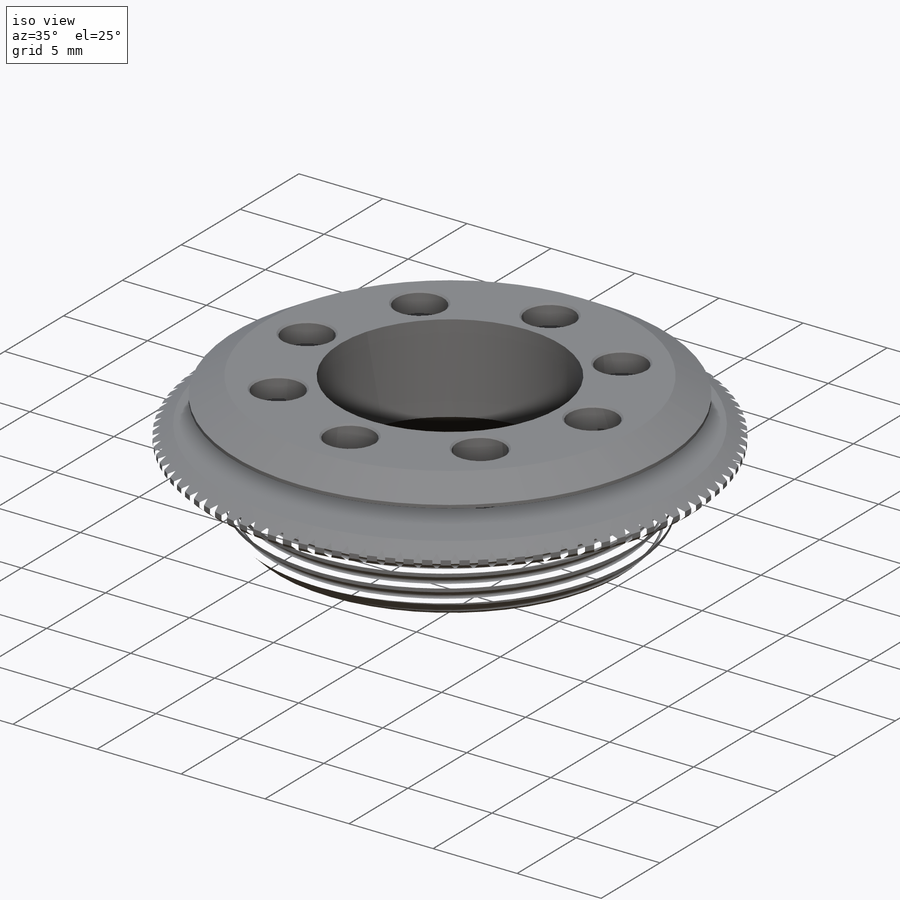
[diagram: iso view]
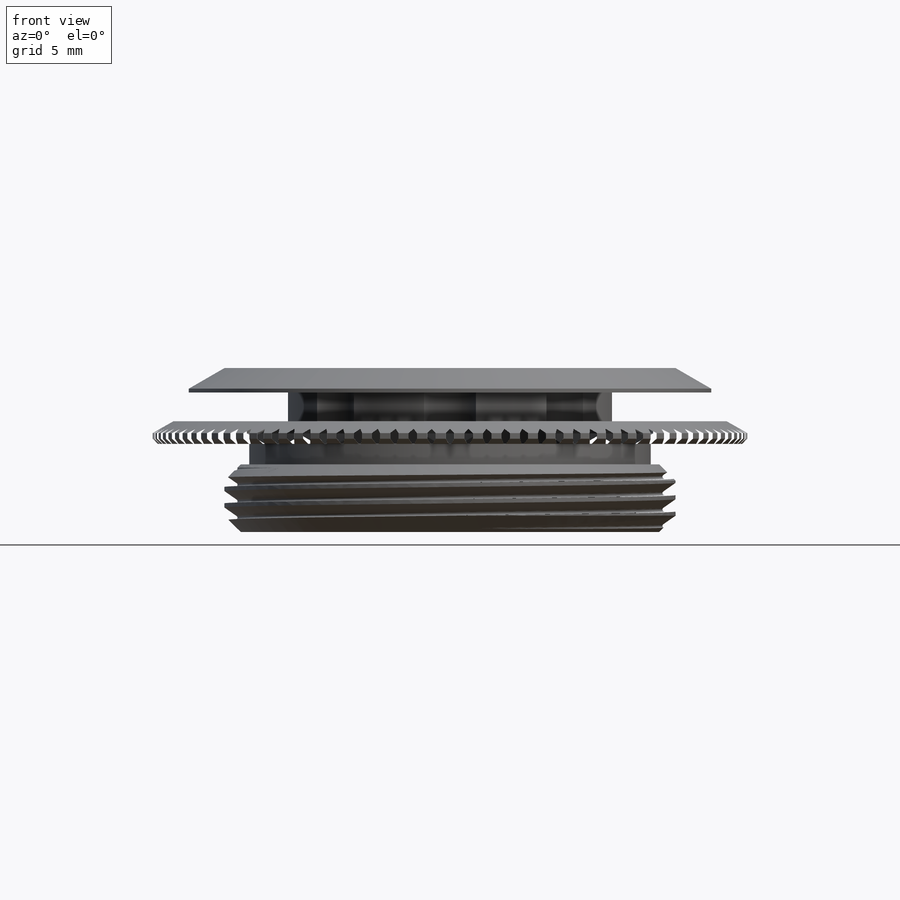
[diagram: front view]
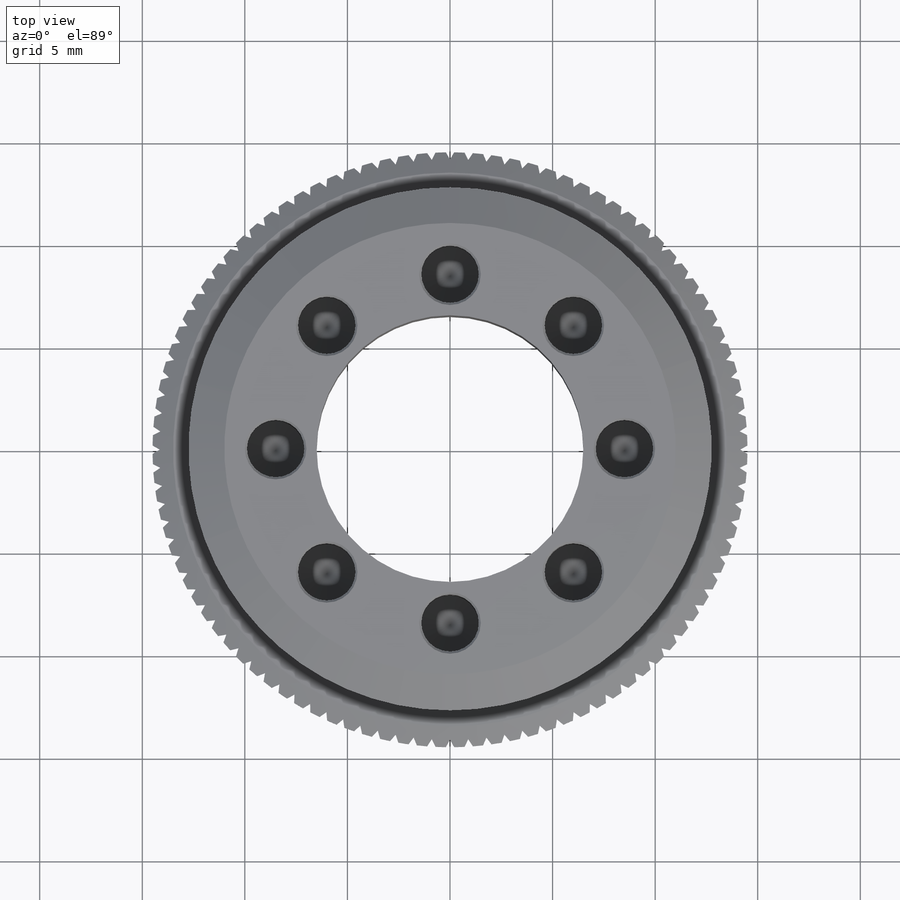
[diagram: top view]
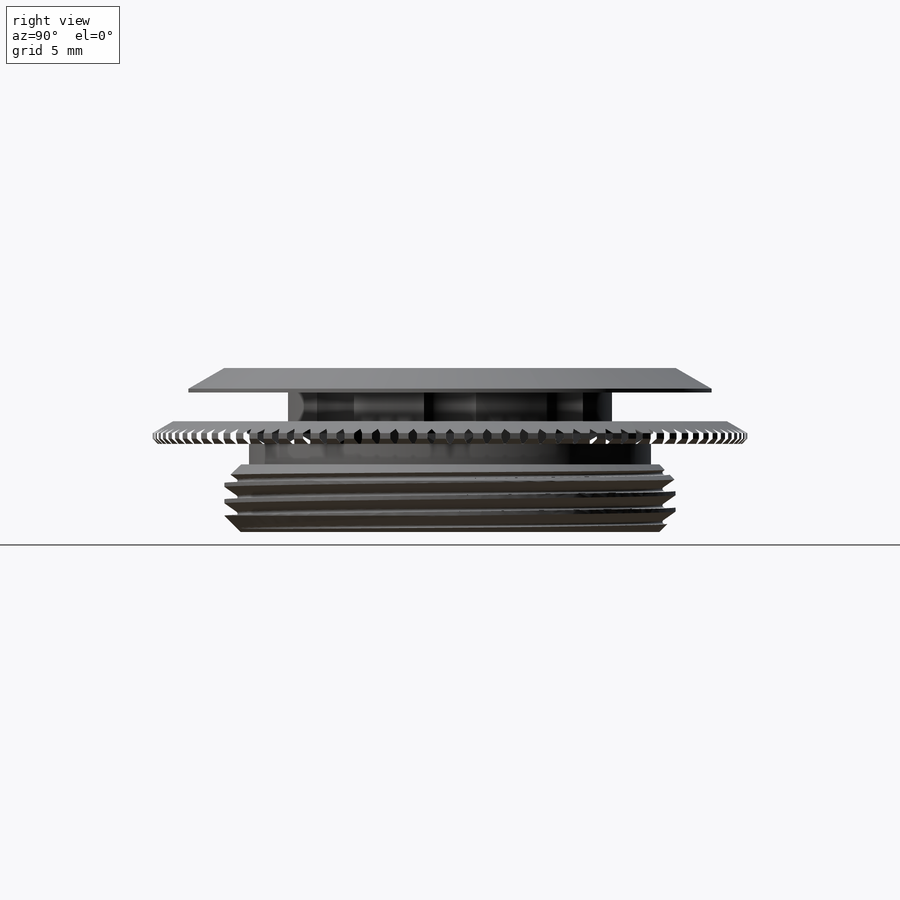
[diagram: right view]
SOLIDWORKS PART (.sldprt)
format: sldprt  version: not decoded by parser v0  size: 1,162,240 bytes
history: native  units: mm
features: sketch x5, pattern_circular x2, material x1, revolve x1, cut_revolve x1, helix x1, sweep x1, cut_extrude x1 (+13 scaffold rows collapsed)
feature tree (26):
  scaffold x13  (default folders/planes/origin — collapsed)
  material  "6061 Alloy"
  sketch  "Sketch1"  dims[c1.D1=13.0mm c1.D2=29.843mm c1.D3=14.5mm c2.D2=14.5mm c2.D3=20.0mm c2.D4=22.0mm c2.D5=~0.383279mm c3.D5=45.0deg c3.D6=~0.491711mm c4.D6=45.0deg c4.D7=0.8mm c4.D8=~18.103791mm c4.D9=19.6mm c5.D8=19.6mm c5.D9=1.0mm c5.D10=4.3mm c5.D11=29.0mm c5.D12=27.0mm c5.D13=~0.877387mm c6.D13=45.0deg c6.D14=1.1mm c6.D15=~5.399458mm c7.D15=30.0deg c7.D16=0.25mm c7.D17=16.0mm c7.D18=25.5mm c7.D19=22.0mm c7.D20=1.2mm c7.D21=1.75mm c8.D21=30.0deg c8.D22=8.0mm]
  revolve  "Revolve1"  Angle=360deg
  sketch  "Sketch2"  dims[c1.D1=2.8mm c1.D2=~3.780285mm c2.D2=45.0deg c2.D3=0.1mm c2.D4=1.4mm c3.D4=60.0deg c3.D5=8.5mm c3.D6=4.0mm]
  cut_revolve  "Cut-Revolve1"  Angle=360deg
  pattern_circular  "CirPattern1"  Count=8 Angle=360deg
  sketch  "Sketch3"  dims[c1.D3=0.1mm c1.D1=~2.098286mm c2.D1=35.0deg c2.D2=0.6mm]
  sketch  "Sketch4"
  helix  "Helix/Spiral1"  Pitch=4mm
  sweep  "Cut-Sweep2"
  sketch  "Sketch5"  dims[D1=14.15mm D2=0.8mm]
  cut_extrude  "Cut-Extrude1"  [1 undecoded]
  pattern_circular  "CirPattern2"  Count=100 Angle=360deg
decode coverage: 9 of 12 modeling features carry decoded parameters
note: ~ marks probable driven/reference dimensions
note: 1 parameter value undecoded
note: suppression state not decoded; provenance and decode notes live in map.json
